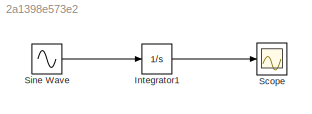
MODEL slx_2a1398e573e2
KIND model
BLOCK [Integrator] Integrator1
  ContinuousStateAttributes = 'Practice3'
  InitialCondition = -1
  Ports = [1, 1]
BLOCK [Scope] Scope
  DataFormat = StructureWithTime
  Floating = off
  LimitDataPoints = off
  NumInputPorts = 1
  Ports = [1]
  SampleTime = 0
  ShowLegends = off
BLOCK [Sin] Sine Wave
  Amplitude = 3
  Frequency = 2
  Ports = [0, 1]
  SampleTime = 0
LINE Integrator1:1 -> Scope:1
LINE Sine Wave:1 -> Integrator1:1
